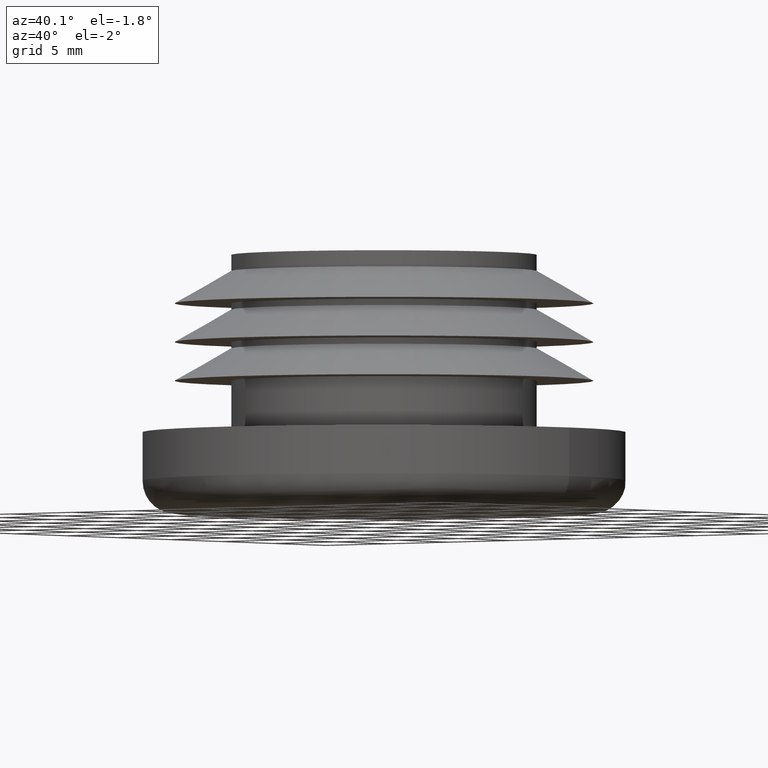
[diagram: clean part render]
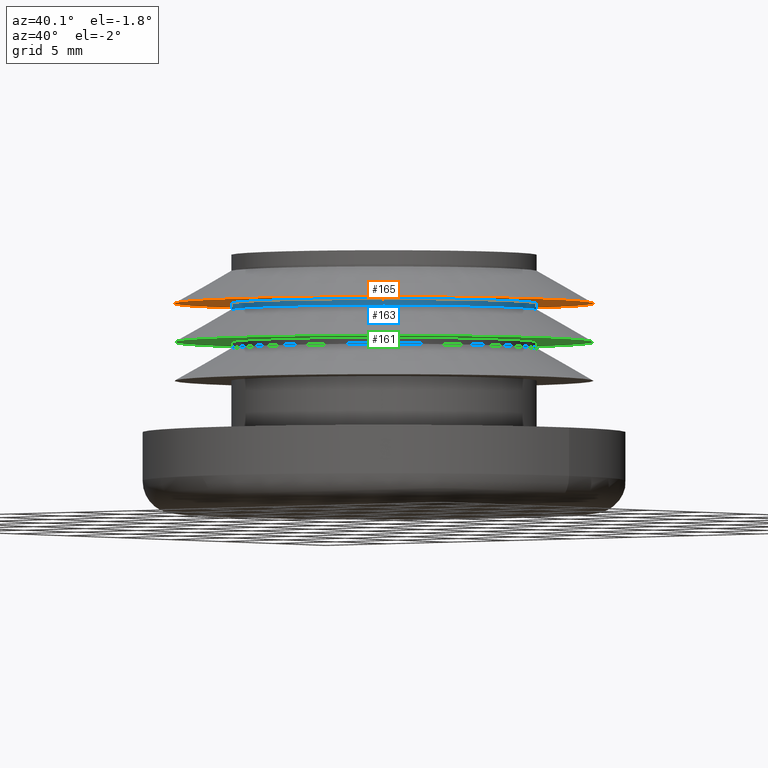
[diagram: same view with three faces highlighted in distinct colors, each labeled with its STEP entity id]
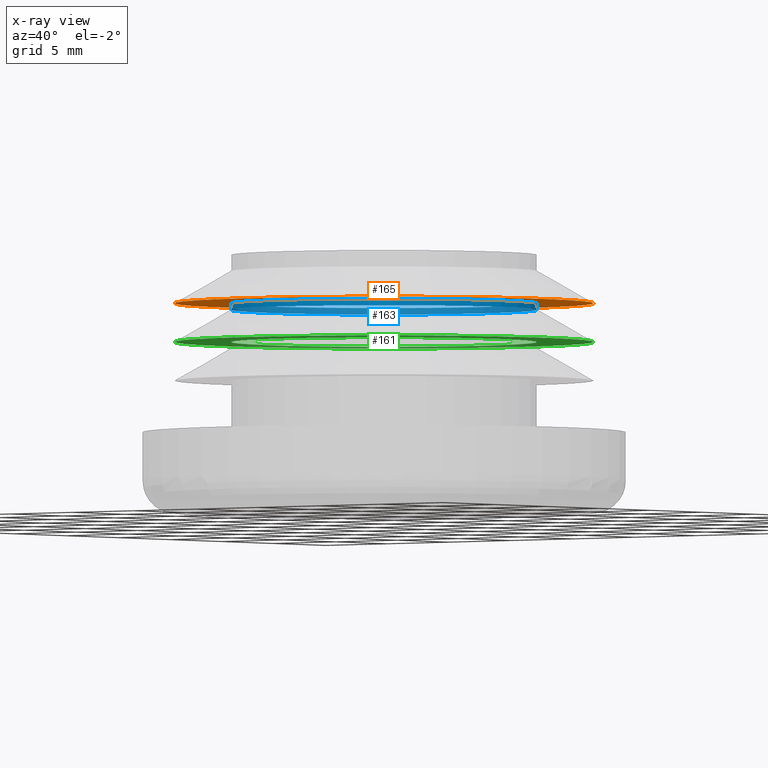
[diagram: x-ray of the same camera — body ghosted, the three highlighted faces saturated]
A machine part, auxiliary view with three faces highlighted in distinct colors.
The next image is the same camera in x-ray (body ghosted, the three faces saturated) — at least one of them is partly hidden behind the body in this view.
Their STEP definitions:

[orange] entity #165 — the highlighted planar face has unit normal (0, 0, -1).
#26=PLANE('',#192);
#37=FACE_BOUND('',#75,.T.);
#51=FACE_OUTER_BOUND('',#74,.T.);
#74=EDGE_LOOP('',(#144));
#75=EDGE_LOOP('',(#145));
#94=CIRCLE('',#190,9.5);
#95=CIRCLE('',#193,13.);
#108=VERTEX_POINT('',#289);
#109=VERTEX_POINT('',#293);
#122=EDGE_CURVE('',#108,#108,#94,.T.);
#123=EDGE_CURVE('',#109,#109,#95,.T.);
#144=ORIENTED_EDGE('',*,*,#123,.T.);
#145=ORIENTED_EDGE('',*,*,#122,.F.);
#165=ADVANCED_FACE('',(#51,#37),#26,.T.);
#190=AXIS2_PLACEMENT_3D('',#290,#238,#239);
#192=AXIS2_PLACEMENT_3D('',#292,#242,#243);
#193=AXIS2_PLACEMENT_3D('',#294,#244,#245);
#238=DIRECTION('center_axis',(0.,0.,-1.));
#239=DIRECTION('ref_axis',(0.,1.,0.));
#242=DIRECTION('center_axis',(0.,0.,-1.));
#243=DIRECTION('ref_axis',(-1.,0.,0.));
#244=DIRECTION('center_axis',(0.,0.,-1.));
#245=DIRECTION('ref_axis',(0.,1.,0.));
#289=CARTESIAN_POINT('',(0.,9.5,10.5));
#290=CARTESIAN_POINT('Origin',(0.,0.,10.5));
#292=CARTESIAN_POINT('Origin',(0.,11.25,10.5));
#293=CARTESIAN_POINT('',(0.,13.,10.5));
#294=CARTESIAN_POINT('Origin',(0.,0.,10.5));

[blue] entity #163 — the highlighted cylindrical surface (bore or boss wall) has radius 9.5 mm, axis along (0, 0, -1).
#19=CYLINDRICAL_SURFACE('',#189,9.5);
#35=FACE_BOUND('',#71,.T.);
#49=FACE_OUTER_BOUND('',#70,.T.);
#70=EDGE_LOOP('',(#140));
#71=EDGE_LOOP('',(#141));
#93=CIRCLE('',#188,9.5);
#94=CIRCLE('',#190,9.5);
#107=VERTEX_POINT('',#286);
#108=VERTEX_POINT('',#289);
#121=EDGE_CURVE('',#107,#107,#93,.T.);
#122=EDGE_CURVE('',#108,#108,#94,.T.);
#140=ORIENTED_EDGE('',*,*,#121,.T.);
#141=ORIENTED_EDGE('',*,*,#122,.T.);
#163=ADVANCED_FACE('',(#49,#35),#19,.T.);
#188=AXIS2_PLACEMENT_3D('',#287,#234,#235);
#189=AXIS2_PLACEMENT_3D('',#288,#236,#237);
#190=AXIS2_PLACEMENT_3D('',#290,#238,#239);
#234=DIRECTION('center_axis',(0.,0.,1.));
#235=DIRECTION('ref_axis',(0.,1.,0.));
#236=DIRECTION('center_axis',(0.,0.,-1.));
#237=DIRECTION('ref_axis',(0.,1.,0.));
#238=DIRECTION('center_axis',(0.,0.,-1.));
#239=DIRECTION('ref_axis',(0.,1.,0.));
#286=CARTESIAN_POINT('',(0.,9.5,10.1));
#287=CARTESIAN_POINT('Origin',(0.,0.,10.1));
#288=CARTESIAN_POINT('Origin',(0.,0.,7.5));
#289=CARTESIAN_POINT('',(0.,9.5,10.5));
#290=CARTESIAN_POINT('Origin',(0.,0.,10.5));

[green] entity #161 — the highlighted planar face has unit normal (0, 0, -1).
#25=PLANE('',#184);
#33=FACE_BOUND('',#67,.T.);
#47=FACE_OUTER_BOUND('',#66,.T.);
#66=EDGE_LOOP('',(#136));
#67=EDGE_LOOP('',(#137));
#91=CIRCLE('',#185,13.);
#92=CIRCLE('',#186,9.5);
#105=VERTEX_POINT('',#281);
#106=VERTEX_POINT('',#283);
#119=EDGE_CURVE('',#105,#105,#91,.T.);
#120=EDGE_CURVE('',#106,#106,#92,.T.);
#136=ORIENTED_EDGE('',*,*,#119,.T.);
#137=ORIENTED_EDGE('',*,*,#120,.F.);
#161=ADVANCED_FACE('',(#47,#33),#25,.T.);
#184=AXIS2_PLACEMENT_3D('',#280,#226,#227);
#185=AXIS2_PLACEMENT_3D('',#282,#228,#229);
#186=AXIS2_PLACEMENT_3D('',#284,#230,#231);
#226=DIRECTION('center_axis',(0.,0.,-1.));
#227=DIRECTION('ref_axis',(-1.,0.,0.));
#228=DIRECTION('center_axis',(0.,0.,-1.));
#229=DIRECTION('ref_axis',(0.,1.,0.));
#230=DIRECTION('center_axis',(0.,0.,-1.));
#231=DIRECTION('ref_axis',(0.,1.,0.));
#280=CARTESIAN_POINT('Origin',(0.,11.25,8.1));
#281=CARTESIAN_POINT('',(0.,13.,8.1));
#282=CARTESIAN_POINT('Origin',(0.,0.,8.1));
#283=CARTESIAN_POINT('',(0.,9.5,8.1));
#284=CARTESIAN_POINT('Origin',(0.,0.,8.1));